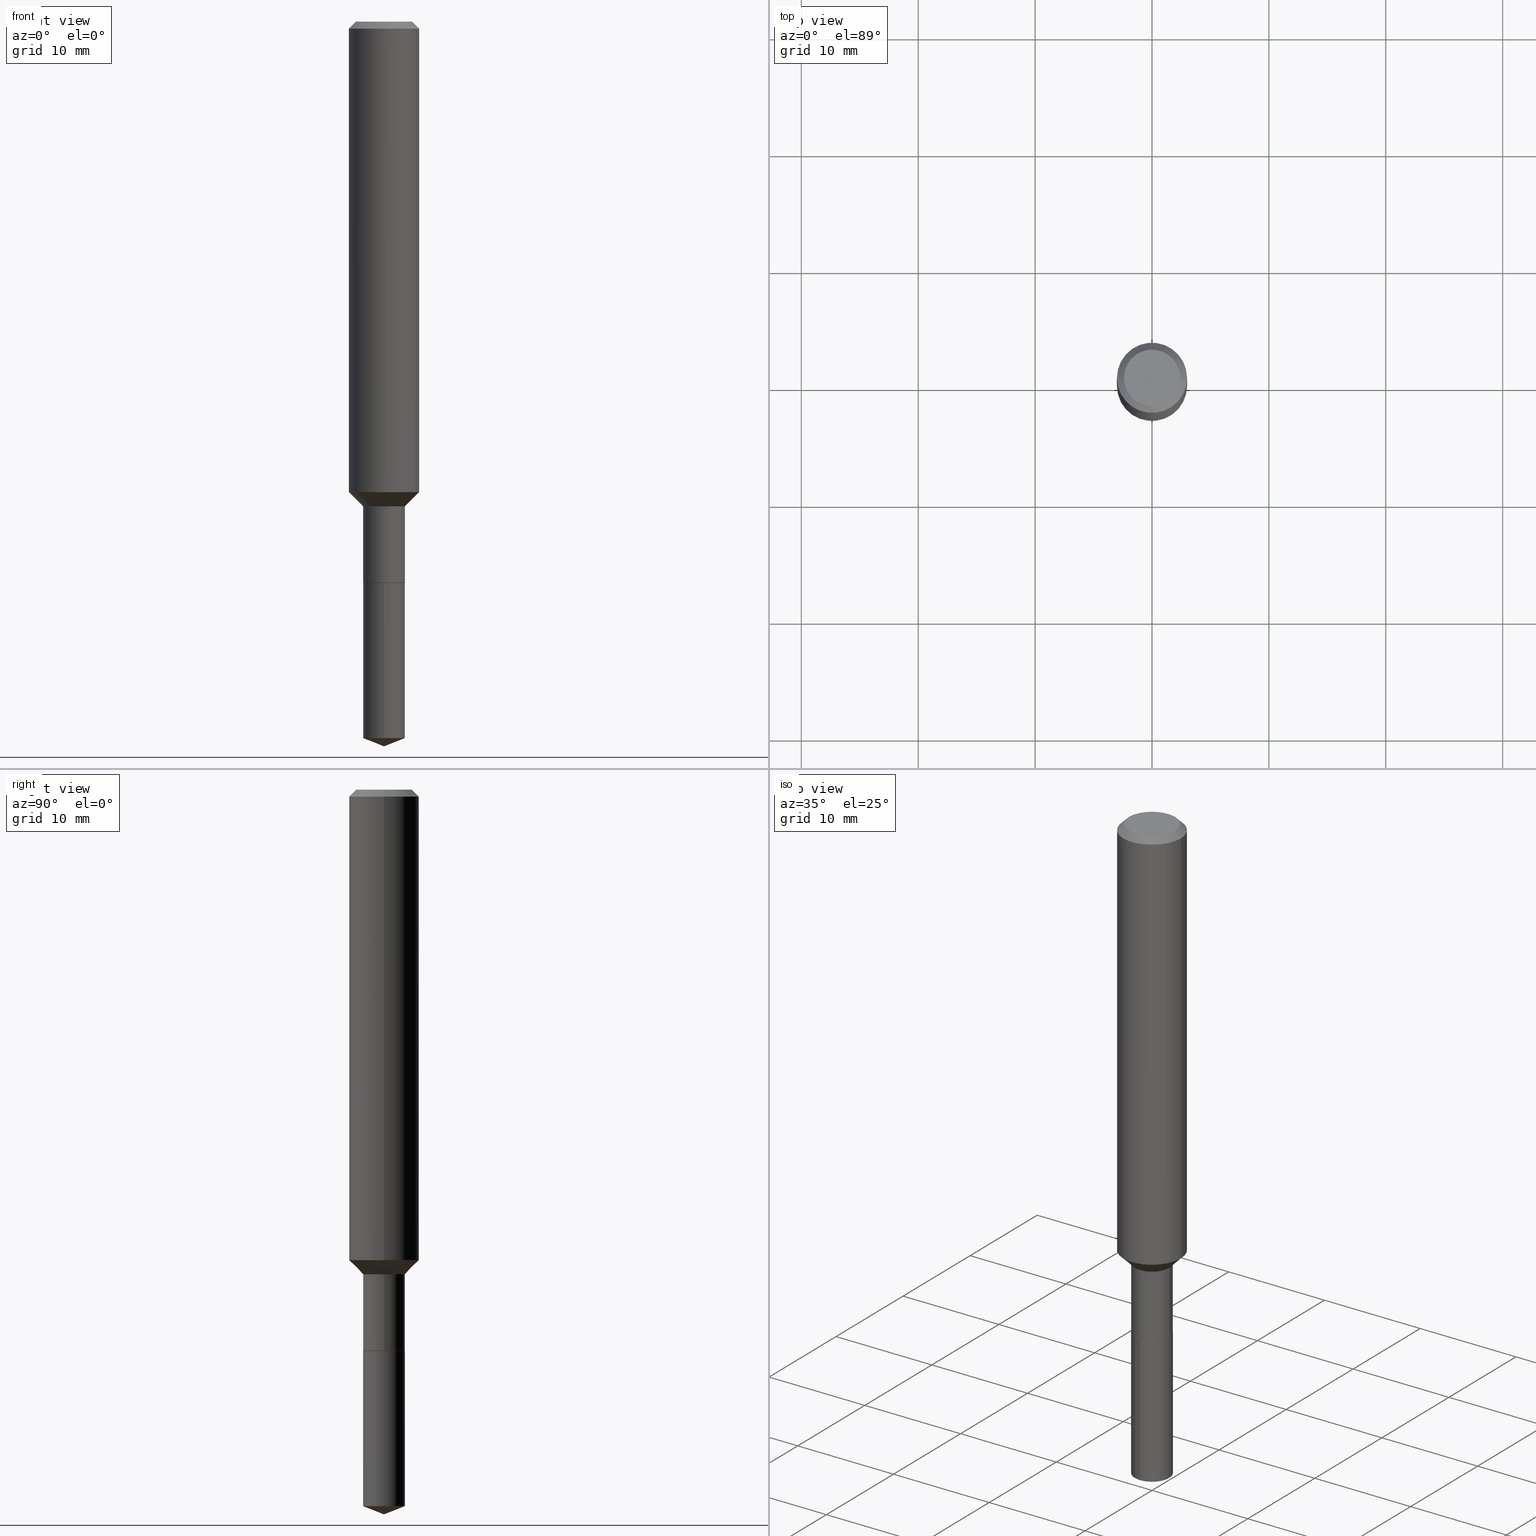
[diagram: canonical four-view strip — front | top / right | iso, engineering-drawing reading convention]
A machine part, canonical four-view strip (front | top / right | iso — engineering-drawing reading convention). The complete STEP part file that produces these views, byte-faithful:
ISO-10303-21;
HEADER;
FILE_DESCRIPTION (( 'STEP AP203' ),
    '1' );
FILE_NAME ('56402.STEP',
    '2024-04-24T17:11:49',
    ( '' ),
    ( '' ),
    'SwSTEP 2.0',
    'SolidWorks 2023',
    '' );
FILE_SCHEMA (( 'CONFIG_CONTROL_DESIGN' ));
ENDSEC;

DATA;
#1 = VERTEX_POINT ( 'NONE', #118 ) ;
#2 = APPROVAL ( #278, 'UNSPECIFIED' ) ;
#3 = AXIS2_PLACEMENT_3D ( 'NONE', #241, #327, #139 ) ;
#4 = AXIS2_PLACEMENT_3D ( 'NONE', #158, #52, #311 ) ;
#5 = CARTESIAN_POINT ( 'NONE',  ( 3.991983279216617405E-29, -5.699494137527552043E-15, -1.632400000000000295 ) ) ;
#6 = ORIENTED_EDGE ( 'NONE', *, *, #50, .F. ) ;
#7 = DIRECTION ( 'NONE',  ( -1.000000000000000000, 6.982962677686266711E-15, 0.000000000000000000 ) ) ;
#8 = EDGE_CURVE ( 'NONE', #299, #447, #367, .T. ) ;
#9 = DIRECTION ( 'NONE',  ( -6.982962677686266711E-15, -1.000000000000000000, 3.885985766236505386E-15 ) ) ;
#10 = CYLINDRICAL_SURFACE ( 'NONE', #225, 0.1181000000000001077 ) ;
#11 = AXIS2_PLACEMENT_3D ( 'NONE', #389, #416, #9 ) ;
#12 = FACE_OUTER_BOUND ( 'NONE', #375, .T. ) ;
#13 = LINE ( 'NONE', #231, #99 ) ;
#14 = FACE_OUTER_BOUND ( 'NONE', #148, .T. ) ;
#15 = ADVANCED_FACE ( 'NONE', ( #14 ), #10, .T. ) ;
#16 = DIRECTION ( 'NONE',  ( -2.426947592678621313E-29, 3.518004770746482411E-15, 1.000000000000000000 ) ) ;
#17 = CARTESIAN_POINT ( 'NONE',  ( -0.07029999999999998750, 4.995115432393503418E-16, -3.458011368449198169E-30 ) ) ;
#18 = VECTOR ( 'NONE', #388, 39.37007874015748143 ) ;
#19 = DIMENSIONAL_EXPONENTS ( 1.000000000000000000, 0.000000000000000000, 0.000000000000000000, 0.000000000000000000, 0.000000000000000000, 0.000000000000000000, 0.000000000000000000 ) ;
#20 = DIRECTION ( 'NONE',  ( 1.000000000000000000, -6.982962677686269077E-15, 0.000000000000000000 ) ) ;
#21 = PERSON_AND_ORGANIZATION ( #71, #258 ) ;
#22 = VECTOR ( 'NONE', #387, 39.37007874015748143 ) ;
#23 = LOCAL_TIME ( 13, 11, 49.00000000000000000, #173 ) ;
#24 = ADVANCED_FACE ( 'NONE', ( #238 ), #459, .T. ) ;
#25 = EDGE_LOOP ( 'NONE', ( #77, #44, #146, #253 ) ) ;
#26 = DIRECTION ( 'NONE',  ( 1.000000000000000000, -6.982962677686266711E-15, 0.000000000000000000 ) ) ;
#27 = CIRCLE ( 'NONE', #351, 0.07030000000000001525 ) ;
#28 = ORIENTED_EDGE ( 'NONE', *, *, #490, .T. ) ;
#29 = EDGE_CURVE ( 'NONE', #104, #154, #40, .T. ) ;
#30 = VERTEX_POINT ( 'NONE', #86 ) ;
#31 = DESIGN_CONTEXT ( 'detailed design', #252, 'design' ) ;
#32 = CC_DESIGN_PERSON_AND_ORGANIZATION_ASSIGNMENT ( #248, #438, ( #272 ) ) ;
#33 = ORIENTED_EDGE ( 'NONE', *, *, #344, .T. ) ;
#34 = CARTESIAN_POINT ( 'NONE',  ( 4.621202403048052644E-29, -6.597852286011891701E-15, -1.889699999999999713 ) ) ;
#35 = EDGE_LOOP ( 'NONE', ( #151, #95, #149, #373 ) ) ;
#36 = CIRCLE ( 'NONE', #3, 0.1180999999999999966 ) ;
#37 = DIRECTION ( 'NONE',  ( 1.000000000000000000, -6.982962677686271444E-15, 0.000000000000000000 ) ) ;
#38 = FACE_OUTER_BOUND ( 'NONE', #65, .T. ) ;
#39 = PERSON_AND_ORGANIZATION ( #71, #258 ) ;
#40 = LINE ( 'NONE', #314, #361 ) ;
#41 = EDGE_CURVE ( 'NONE', #354, #154, #437, .T. ) ;
#42 = DIRECTION ( 'NONE',  ( -2.445468806185136597E-29, 3.491481338843145583E-15, 1.000000000000000000 ) ) ;
#43 = DIRECTION ( 'NONE',  ( -1.000000000000000000, 6.982962677686266711E-15, 0.000000000000000000 ) ) ;
#44 = ORIENTED_EDGE ( 'NONE', *, *, #59, .T. ) ;
#45 = CARTESIAN_POINT ( 'NONE',  ( 4.621202403048053204E-29, -6.597852286011893278E-15, -1.889700000000000379 ) ) ;
#46 = DIRECTION ( 'NONE',  ( 1.000000000000000000, -6.982962677686269077E-15, 0.000000000000000000 ) ) ;
#47 = ORIENTED_EDGE ( 'NONE', *, *, #221, .T. ) ;
#48 = AXIS2_PLACEMENT_3D ( 'NONE', #284, #183, #355 ) ;
#49 = CIRCLE ( 'NONE', #399, 0.1181000000000001909 ) ;
#50 = EDGE_CURVE ( 'NONE', #414, #110, #463, .T. ) ;
#51 = EDGE_LOOP ( 'NONE', ( #222, #337 ) ) ;
#52 = DIRECTION ( 'NONE',  ( -2.426947592678621032E-29, 3.518004770746482806E-15, 1.000000000000000000 ) ) ;
#53 = DIRECTION ( 'NONE',  ( 0.000000000000000000, 0.000000000000000000, 1.000000000000000000 ) ) ;
#54 = DIRECTION ( 'NONE',  ( -2.426947592678621032E-29, 3.518004770746482806E-15, 1.000000000000000000 ) ) ;
#55 = COORDINATED_UNIVERSAL_TIME_OFFSET ( 5, 0, .BEHIND. ) ;
#56 = CARTESIAN_POINT ( 'NONE',  ( 0.07029999999999995974, -6.190396413768896991E-15, -1.632400000000000295 ) ) ;
#57 = AXIS2_PLACEMENT_3D ( 'NONE', #127, #390, #306 ) ;
#58 = SECURITY_CLASSIFICATION_LEVEL ( 'unclassified' ) ;
#59 = EDGE_CURVE ( 'NONE', #354, #270, #84, .T. ) ;
#60 = CARTESIAN_POINT ( 'NONE',  ( 0.07029999999999998750, -7.087008821583815933E-15, -1.889200000000000212 ) ) ;
#61 = DATE_AND_TIME ( #402, #219 ) ;
#62 = AXIS2_PLACEMENT_3D ( 'NONE', #202, #333, #26 ) ;
#63 = EDGE_CURVE ( 'NONE', #296, #30, #125, .T. ) ;
#64 = AXIS2_PLACEMENT_3D ( 'NONE', #116, #323, #470 ) ;
#65 = EDGE_LOOP ( 'NONE', ( #115, #335, #489, #410 ) ) ;
#66 = DIRECTION ( 'NONE',  ( 0.7071067811865460184, -7.319954787623251312E-15, -0.7071067811865490160 ) ) ;
#67 = VERTEX_POINT ( 'NONE', #468 ) ;
#68 = FACE_OUTER_BOUND ( 'NONE', #25, .T. ) ;
#69 = AXIS2_PLACEMENT_3D ( 'NONE', #117, #267, #420 ) ;
#70 = EDGE_LOOP ( 'NONE', ( #98, #208, #191 ) ) ;
#71 = PERSON ( 'UNSPECIFIED', 'UNSPECIFIED', 'UNSPECIFIED', ('UNSPECIFIED'), ('UNSPECIFIED'), ('UNSPECIFIED') ) ;
#72 = VERTEX_POINT ( 'NONE', #431 ) ;
#73 = DIRECTION ( 'NONE',  ( 1.000000000000000000, -6.982962677686271444E-15, 0.000000000000000000 ) ) ;
#74 = ORIENTED_EDGE ( 'NONE', *, *, #471, .F. ) ;
#75 = CARTESIAN_POINT ( 'NONE',  ( 0.1181000000000001632, -6.357289221765599043E-15, -1.584600000000000453 ) ) ;
#76 = DIRECTION ( 'NONE',  ( -2.445468806185136877E-29, 3.491481338843145188E-15, 1.000000000000000000 ) ) ;
#77 = ORIENTED_EDGE ( 'NONE', *, *, #138, .T. ) ;
#78 = EDGE_CURVE ( 'NONE', #167, #72, #36, .T. ) ;
#79 = AXIS2_PLACEMENT_3D ( 'NONE', #34, #455, #189 ) ;
#80 = FACE_OUTER_BOUND ( 'NONE', #279, .T. ) ;
#81 = LINE ( 'NONE', #286, #295 ) ;
#82 = CARTESIAN_POINT ( 'NONE',  ( -0.06980000000000000093, -6.101893456451343539E-15, -1.889700000000000379 ) ) ;
#83 = APPROVAL_ROLE ( '' ) ;
#84 = LINE ( 'NONE', #228, #22 ) ;
#85 = CYLINDRICAL_SURFACE ( 'NONE', #79, 0.07030000000000000138 ) ;
#86 = CARTESIAN_POINT ( 'NONE',  ( 0.07029999999999995974, -6.190396413768896991E-15, -1.632400000000000295 ) ) ;
#87 = EDGE_CURVE ( 'NONE', #242, #412, #334, .T. ) ;
#88 = DATE_TIME_ROLE ( 'creation_date' ) ;
#89 = ORIENTED_EDGE ( 'NONE', *, *, #427, .F. ) ;
#90 = CARTESIAN_POINT ( 'NONE',  ( 3.875089870280967892E-29, -5.532601329530849202E-15, -1.584600000000000453 ) ) ;
#91 = VECTOR ( 'NONE', #210, 39.37007874015748143 ) ;
#92 = LINE ( 'NONE', #394, #269 ) ;
#93 = VECTOR ( 'NONE', #159, 39.37007874015748143 ) ;
#94 = APPROVAL ( #440, 'UNSPECIFIED' ) ;
#95 = ORIENTED_EDGE ( 'NONE', *, *, #112, .T. ) ;
#96 = LINE ( 'NONE', #56, #411 ) ;
#97 = CALENDAR_DATE ( 2024, 24, 4 ) ;
#98 = ORIENTED_EDGE ( 'NONE', *, *, #344, .F. ) ;
#99 = VECTOR ( 'NONE', #408, 39.37007874015748854 ) ;
#100 = DATE_AND_TIME ( #97, #23 ) ;
#101 = DATE_TIME_ROLE ( 'classification_date' ) ;
#102 = AXIS2_PLACEMENT_3D ( 'NONE', #113, #264, #234 ) ;
#103 = LOCAL_TIME ( 13, 11, 49.00000000000000000, #140 ) ;
#104 = VERTEX_POINT ( 'NONE', #397 ) ;
#105 = CYLINDRICAL_SURFACE ( 'NONE', #461, 0.07029999999999998750 ) ;
#106 = DIRECTION ( 'NONE',  ( 1.000000000000000000, -6.982962677686271444E-15, 0.000000000000000000 ) ) ;
#107 = ORIENTED_EDGE ( 'NONE', *, *, #221, .F. ) ;
#108 = EDGE_CURVE ( 'NONE', #30, #242, #96, .T. ) ;
#109 = VERTEX_POINT ( 'NONE', #213 ) ;
#110 = VERTEX_POINT ( 'NONE', #177 ) ;
#111 = DIRECTION ( 'NONE',  ( 1.000000000000000000, -6.982962677686266711E-15, 0.000000000000000000 ) ) ;
#112 = EDGE_CURVE ( 'NONE', #1, #414, #452, .T. ) ;
#113 = CARTESIAN_POINT ( 'NONE',  ( 3.991983279216617405E-29, -5.699494137527552043E-15, -1.632400000000000295 ) ) ;
#114 = DIRECTION ( 'NONE',  ( -2.445468806185136597E-29, 3.491481338843145583E-15, 1.000000000000000000 ) ) ;
#115 = ORIENTED_EDGE ( 'NONE', *, *, #8, .F. ) ;
#116 = CARTESIAN_POINT ( 'NONE',  ( -5.066296111865690233E-30, -1.394119958846901533E-14, -1.889699999999999713 ) ) ;
#117 = CARTESIAN_POINT ( 'NONE',  ( 4.621202403048053204E-29, -6.597852286011892490E-15, -1.889700000000000157 ) ) ;
#118 = CARTESIAN_POINT ( 'NONE',  ( -0.06980000000000000093, -6.099244229277232338E-15, -1.889700000000000379 ) ) ;
#119 = VECTOR ( 'NONE', #316, 39.37007874015748854 ) ;
#120 = DIRECTION ( 'NONE',  ( 1.000000000000000000, -6.982962677686266711E-15, 4.876176775795935232E-29 ) ) ;
#121 = FACE_OUTER_BOUND ( 'NONE', #35, .T. ) ;
#122 = EDGE_CURVE ( 'NONE', #109, #296, #13, .T. ) ;
#123 = DIRECTION ( 'NONE',  ( -1.000000000000000000, 6.982962677686265922E-15, -4.876176775795935793E-29 ) ) ;
#124 = CARTESIAN_POINT ( 'NONE',  ( 0.1180999999999999966, -9.071566814582237199E-16, -0.02362000000000014088 ) ) ;
#125 = LINE ( 'NONE', #196, #257 ) ;
#126 = CC_DESIGN_PERSON_AND_ORGANIZATION_ASSIGNMENT ( #39, #195, ( #464 ) ) ;
#127 = CARTESIAN_POINT ( 'NONE',  ( 0.000000000000000000, 0.000000000000000000, 0.000000000000000000 ) ) ;
#128 = DIRECTION ( 'NONE',  ( -2.445468806185136597E-29, 3.491481338843145583E-15, 1.000000000000000000 ) ) ;
#129 = ORIENTED_EDGE ( 'NONE', *, *, #366, .T. ) ;
#130 = AXIS2_PLACEMENT_3D ( 'NONE', #372, #216, #182 ) ;
#131 = ORIENTED_EDGE ( 'NONE', *, *, #271, .F. ) ;
#132 = EDGE_CURVE ( 'NONE', #296, #414, #449, .T. ) ;
#133 = PLANE ( 'NONE',  #48 ) ;
#134 = ORIENTED_EDGE ( 'NONE', *, *, #483, .T. ) ;
#135 = AXIS2_PLACEMENT_3D ( 'NONE', #162, #475, #283 ) ;
#136 = CIRCLE ( 'NONE', #190, 0.06980000000000000093 ) ;
#137 = CIRCLE ( 'NONE', #301, 0.07029999999999998750 ) ;
#138 = EDGE_CURVE ( 'NONE', #154, #354, #27, .T. ) ;
#139 = DIRECTION ( 'NONE',  ( 1.000000000000000000, -6.982962677686266711E-15, 0.000000000000000000 ) ) ;
#140 = COORDINATED_UNIVERSAL_TIME_OFFSET ( 5, 0, .BEHIND. ) ;
#141 = PRODUCT_RELATED_PRODUCT_CATEGORY ( 'detail', '', ( #384 ) ) ;
#142 = FACE_OUTER_BOUND ( 'NONE', #259, .T. ) ;
#143 = AXIS2_PLACEMENT_3D ( 'NONE', #396, #54, #236 ) ;
#144 = AXIS2_PLACEMENT_3D ( 'NONE', #460, #165, #120 ) ;
#145 = CC_DESIGN_APPROVAL ( #2, ( #464 ) ) ;
#146 = ORIENTED_EDGE ( 'NONE', *, *, #251, .F. ) ;
#147 = DIRECTION ( 'NONE',  ( 2.445468806185136597E-29, -3.491481338843145583E-15, -1.000000000000000000 ) ) ;
#148 = EDGE_LOOP ( 'NONE', ( #255, #342, #302, #380 ) ) ;
#149 = ORIENTED_EDGE ( 'NONE', *, *, #132, .F. ) ;
#150 = CIRCLE ( 'NONE', #102, 0.07029999999999995974 ) ;
#151 = ORIENTED_EDGE ( 'NONE', *, *, #271, .T. ) ;
#152 = ADVANCED_FACE ( 'NONE', ( #352 ), #105, .T. ) ;
#153 = DIRECTION ( 'NONE',  ( -2.445468806185136597E-29, 3.491481338843145583E-15, 1.000000000000000000 ) ) ;
#154 = VERTEX_POINT ( 'NONE', #446 ) ;
#155 = CARTESIAN_POINT ( 'NONE',  ( 5.776197320209327532E-31, -8.246878922347559293E-17, -0.02362000000000014088 ) ) ;
#156 = DATE_AND_TIME ( #237, #192 ) ;
#157 = ORIENTED_EDGE ( 'NONE', *, *, #112, .F. ) ;
#158 = CARTESIAN_POINT ( 'NONE',  ( 4.621202403048053204E-29, -6.597852286011892490E-15, -1.889700000000000157 ) ) ;
#159 = DIRECTION ( 'NONE',  ( -2.445468806185136877E-29, 3.491481338843145188E-15, 1.000000000000000000 ) ) ;
#160 = DIRECTION ( 'NONE',  ( 2.445468806185136597E-29, -3.491481338843145583E-15, -1.000000000000000000 ) ) ;
#161 =( NAMED_UNIT ( * ) SI_UNIT ( $, .STERADIAN. ) SOLID_ANGLE_UNIT ( ) );
#162 = CARTESIAN_POINT ( 'NONE',  ( -8.959018190586044362E-28, 1.299671483168913418E-13, 36.92917874015748225 ) ) ;
#163 = AXIS2_PLACEMENT_3D ( 'NONE', #308, #379, #254 ) ;
#164 = CIRCLE ( 'NONE', #4, 0.07030000000000000138 ) ;
#165 = DIRECTION ( 'NONE',  ( -2.445468806185136597E-29, 3.491481338843145583E-15, 1.000000000000000000 ) ) ;
#166 = DIRECTION ( 'NONE',  ( -2.426947592678621032E-29, 3.518004770746482806E-15, 1.000000000000000000 ) ) ;
#167 = VERTEX_POINT ( 'NONE', #124 ) ;
#168 = EDGE_CURVE ( 'NONE', #30, #110, #312, .T. ) ;
#169 = CARTESIAN_POINT ( 'NONE',  ( -0.07030000000000000138, -5.648288798195662455E-15, -1.889200000000000212 ) ) ;
#170 = CIRCLE ( 'NONE', #205, 0.1180999999999999966 ) ;
#171 = EDGE_CURVE ( 'NONE', #299, #167, #462, .T. ) ;
#172 = CC_DESIGN_SECURITY_CLASSIFICATION ( #369, ( #272 ) ) ;
#173 = COORDINATED_UNIVERSAL_TIME_OFFSET ( 5, 0, .BEHIND. ) ;
#174 = APPROVAL_ROLE ( '' ) ;
#175 = ADVANCED_FACE ( 'NONE', ( #121 ), #339, .T. ) ;
#176 = AXIS2_PLACEMENT_3D ( 'NONE', #480, #289, #20 ) ;
#177 = CARTESIAN_POINT ( 'NONE',  ( -0.07029999999999995974, -5.648288798195662455E-15, -1.632400000000000295 ) ) ;
#178 = PERSON_AND_ORGANIZATION ( #71, #258 ) ;
#179 = CC_DESIGN_PERSON_AND_ORGANIZATION_ASSIGNMENT ( #400, #477, ( #369 ) ) ;
#180 = LINE ( 'NONE', #329, #478 ) ;
#181 = ORIENTED_EDGE ( 'NONE', *, *, #282, .T. ) ;
#182 = DIRECTION ( 'NONE',  ( 1.000000000000000000, -6.982962677686271444E-15, 0.000000000000000000 ) ) ;
#183 = DIRECTION ( 'NONE',  ( -2.438088387897960049E-29, 3.491481338843145188E-15, 1.000000000000000000 ) ) ;
#184 = ADVANCED_FACE ( 'NONE', ( #223 ), #374, .T. ) ;
#185 =( GEOMETRIC_REPRESENTATION_CONTEXT ( 3 ) GLOBAL_UNCERTAINTY_ASSIGNED_CONTEXT ( ( #261 ) ) GLOBAL_UNIT_ASSIGNED_CONTEXT ( ( #395, #356, #161 ) ) REPRESENTATION_CONTEXT ( 'NONE', 'WORKASPACE' ) );
#186 = ORIENTED_EDGE ( 'NONE', *, *, #108, .T. ) ;
#187 = ORIENTED_EDGE ( 'NONE', *, *, #63, .F. ) ;
#188 = ORIENTED_EDGE ( 'NONE', *, *, #87, .F. ) ;
#189 = DIRECTION ( 'NONE',  ( -6.982962677686266711E-15, -1.000000000000000000, 3.885985766236505386E-15 ) ) ;
#190 = AXIS2_PLACEMENT_3D ( 'NONE', #45, #128, #106 ) ;
#191 = ORIENTED_EDGE ( 'NONE', *, *, #41, .F. ) ;
#192 = LOCAL_TIME ( 13, 11, 49.00000000000000000, #227 ) ;
#193 = DIRECTION ( 'NONE',  ( -2.445468806185136597E-29, 3.491481338843145583E-15, 1.000000000000000000 ) ) ;
#194 = DIRECTION ( 'NONE',  ( -6.982962677686266711E-15, -1.000000000000000000, 3.885985766236504597E-15 ) ) ;
#195 = PERSON_AND_ORGANIZATION_ROLE ( 'creator' ) ;
#196 = CARTESIAN_POINT ( 'NONE',  ( 0.07029999999999998750, -4.909022762413444543E-16, 3.427952273384541736E-30 ) ) ;
#197 = DIRECTION ( 'NONE',  ( 1.000000000000000000, -6.982962677686266711E-15, 0.000000000000000000 ) ) ;
#198 = DIRECTION ( 'NONE',  ( -2.445468806185136597E-29, 3.491481338843145583E-15, 1.000000000000000000 ) ) ;
#199 = LINE ( 'NONE', #235, #444 ) ;
#200 = DIRECTION ( 'NONE',  ( 1.000000000000000000, -6.982962677686266711E-15, 4.876176775795935793E-29 ) ) ;
#201 = ADVANCED_FACE ( 'NONE', ( #424 ), #368, .T. ) ;
#202 = CARTESIAN_POINT ( 'NONE',  ( 4.619979668644960403E-29, -6.596106545342470986E-15, -1.889200000000000212 ) ) ;
#203 = MECHANICAL_CONTEXT ( 'NONE', #476, 'mechanical' ) ;
#204 = EDGE_LOOP ( 'NONE', ( #457, #488, #129, #89 ) ) ;
#205 = AXIS2_PLACEMENT_3D ( 'NONE', #428, #246, #111 ) ;
#206 = CIRCLE ( 'NONE', #405, 0.09447999999999998066 ) ;
#207 =( LENGTH_UNIT ( ) NAMED_UNIT ( * ) SI_UNIT ( $, .METRE. ) );
#208 = ORIENTED_EDGE ( 'NONE', *, *, #29, .T. ) ;
#209 = PERSON_AND_ORGANIZATION_ROLE ( 'design_owner' ) ;
#210 = DIRECTION ( 'NONE',  ( -2.445468806185136877E-29, 3.491481338843145188E-15, 1.000000000000000000 ) ) ;
#211 = ADVANCED_FACE ( 'NONE', ( #68 ), #85, .T. ) ;
#212 = APPROVAL_DATE_TIME ( #100, #94 ) ;
#213 = CARTESIAN_POINT ( 'NONE',  ( 0.06980000000000000093, -7.085263080914395219E-15, -1.889700000000000379 ) ) ;
#214 = APPROVAL ( #421, 'UNSPECIFIED' ) ;
#215 = AXIS2_PLACEMENT_3D ( 'NONE', #300, #260, #73 ) ;
#216 = DIRECTION ( 'NONE',  ( -2.445468806185136597E-29, 3.491481338843145583E-15, 1.000000000000000000 ) ) ;
#217 = ADVANCED_FACE ( 'NONE', ( #341 ), #244, .T. ) ;
#218 = ORIENTED_EDGE ( 'NONE', *, *, #413, .F. ) ;
#219 = LOCAL_TIME ( 13, 11, 49.00000000000000000, #55 ) ;
#220 = EDGE_LOOP ( 'NONE', ( #448, #134, #28, #298 ) ) ;
#221 = EDGE_CURVE ( 'NONE', #110, #30, #150, .T. ) ;
#222 = ORIENTED_EDGE ( 'NONE', *, *, #471, .T. ) ;
#223 = FACE_OUTER_BOUND ( 'NONE', #338, .T. ) ;
#224 = ORIENTED_EDGE ( 'NONE', *, *, #50, .T. ) ;
#225 = AXIS2_PLACEMENT_3D ( 'NONE', #435, #426, #200 ) ;
#226 = DIRECTION ( 'NONE',  ( -2.445468806185136597E-29, 3.491481338843145583E-15, 1.000000000000000000 ) ) ;
#227 = COORDINATED_UNIVERSAL_TIME_OFFSET ( 5, 0, .BEHIND. ) ;
#228 = CARTESIAN_POINT ( 'NONE',  ( 4.995115432393966874E-16, 0.07029999999999340943, -1.889700000000000157 ) ) ;
#229 = LOCAL_TIME ( 13, 11, 49.00000000000000000, #309 ) ;
#230 = CARTESIAN_POINT ( 'NONE',  ( -0.1181000000000001077, 8.391509709326790846E-16, -5.809262341591049389E-30 ) ) ;
#231 = CARTESIAN_POINT ( 'NONE',  ( 0.06980000000000000093, -7.085263080914395219E-15, -1.889700000000000379 ) ) ;
#232 = ORIENTED_EDGE ( 'NONE', *, *, #251, .T. ) ;
#233 = LINE ( 'NONE', #358, #18 ) ;
#234 = DIRECTION ( 'NONE',  ( 1.000000000000000000, -6.982962677686269077E-15, 0.000000000000000000 ) ) ;
#235 = CARTESIAN_POINT ( 'NONE',  ( 0.1181000000000001077, -8.246878922347488542E-16, 5.758764772215005345E-30 ) ) ;
#236 = DIRECTION ( 'NONE',  ( -6.982962677686266711E-15, -1.000000000000000000, 3.885985766236504597E-15 ) ) ;
#237 = CALENDAR_DATE ( 2024, 24, 4 ) ;
#238 = FACE_OUTER_BOUND ( 'NONE', #70, .T. ) ;
#239 = ADVANCED_FACE ( 'NONE', ( #385 ), #349, .T. ) ;
#240 = ORIENTED_EDGE ( 'NONE', *, *, #401, .T. ) ;
#241 = CARTESIAN_POINT ( 'NONE',  ( 5.776197320209327532E-31, -8.246878922347559293E-17, -0.02362000000000014088 ) ) ;
#242 = VERTEX_POINT ( 'NONE', #75 ) ;
#243 = CLOSED_SHELL ( 'NONE', ( #175, #247, #15, #319, #336, #152, #217, #364, #201, #450, #328, #398 ) ) ;
#244 = CONICAL_SURFACE ( 'NONE', #439, 0.07029999999999995974, 0.7853981633974509435 ) ;
#245 = APPROVAL_PERSON_ORGANIZATION ( #417, #2, #322 ) ;
#246 = DIRECTION ( 'NONE',  ( -2.445468806185136597E-29, 3.491481338843145583E-15, 1.000000000000000000 ) ) ;
#247 = ADVANCED_FACE ( 'NONE', ( #38 ), #472, .T. ) ;
#248 = PERSON_AND_ORGANIZATION ( #71, #258 ) ;
#249 = APPROVAL_PERSON_ORGANIZATION ( #268, #214, #83 ) ;
#250 = DIRECTION ( 'NONE',  ( 1.000000000000000000, -6.982962677686269077E-15, 0.000000000000000000 ) ) ;
#251 = EDGE_CURVE ( 'NONE', #67, #270, #287, .T. ) ;
#252 = APPLICATION_CONTEXT ( 'configuration controlled 3d designs of mechanical parts and assemblies' ) ;
#253 = ORIENTED_EDGE ( 'NONE', *, *, #366, .F. ) ;
#254 = DIRECTION ( 'NONE',  ( -6.982962677686268288E-15, -1.000000000000000000, 3.498627837350004617E-15 ) ) ;
#255 = ORIENTED_EDGE ( 'NONE', *, *, #87, .T. ) ;
#256 = CARTESIAN_POINT ( 'NONE',  ( -0.1181000000000001632, -4.693450358598171005E-15, -1.584600000000000453 ) ) ;
#257 = VECTOR ( 'NONE', #318, 39.37007874015748143 ) ;
#258 = ORGANIZATION ( 'UNSPECIFIED', 'UNSPECIFIED', '' ) ;
#259 = EDGE_LOOP ( 'NONE', ( #332, #181, #188, #359 ) ) ;
#260 = DIRECTION ( 'NONE',  ( -2.445468806185136597E-29, 3.491481338843145583E-15, 1.000000000000000000 ) ) ;
#261 = UNCERTAINTY_MEASURE_WITH_UNIT (LENGTH_MEASURE( 1.000000000000000082E-05 ), #395, 'distance_accuracy_value', 'NONE');
#262 = ORIENTED_EDGE ( 'NONE', *, *, #122, .T. ) ;
#263 = DIRECTION ( 'NONE',  ( -0.7071067811865493491, 7.493145998870360471E-15, 0.7071067811865456854 ) ) ;
#264 = DIRECTION ( 'NONE',  ( -2.445468806185136597E-29, 3.491481338843145583E-15, 1.000000000000000000 ) ) ;
#265 = ORIENTED_EDGE ( 'NONE', *, *, #171, .F. ) ;
#266 = CARTESIAN_POINT ( 'NONE',  ( 4.619979668644960403E-29, -6.596106545342470986E-15, -1.889200000000000212 ) ) ;
#267 = DIRECTION ( 'NONE',  ( -2.426947592678621032E-29, 3.518004770746482806E-15, 1.000000000000000000 ) ) ;
#268 = PERSON_AND_ORGANIZATION ( #71, #258 ) ;
#269 = VECTOR ( 'NONE', #16, 39.37007874015748143 ) ;
#270 = VERTEX_POINT ( 'NONE', #391 ) ;
#271 = EDGE_CURVE ( 'NONE', #109, #1, #136, .T. ) ;
#272 = PRODUCT_DEFINITION_FORMATION_WITH_SPECIFIED_SOURCE ( 'ANY', '', #384, .NOT_KNOWN. ) ;
#273 = DIRECTION ( 'NONE',  ( 1.000000000000000000, -6.982962677686269077E-15, 0.000000000000000000 ) ) ;
#274 = APPLICATION_PROTOCOL_DEFINITION ( 'international standard', 'config_control_design', 1994, #476 ) ;
#275 = ORIENTED_EDGE ( 'NONE', *, *, #29, .F. ) ;
#276 = CYLINDRICAL_SURFACE ( 'NONE', #57, 0.1181000000000001077 ) ;
#277 = CARTESIAN_POINT ( 'NONE',  ( 0.1180999999999999966, -8.926936027602933910E-16, -0.02362000000000014088 ) ) ;
#278 = APPROVAL_STATUS ( 'not_yet_approved' ) ;
#279 = EDGE_LOOP ( 'NONE', ( #232, #347 ) ) ;
#280 = MANIFOLD_SOLID_BREP ( 'Body-Move/Copy2[2]', #243 ) ;
#281 = CARTESIAN_POINT ( 'NONE',  ( 6.603013411620882309E-46, -9.427353171913646324E-32, -2.700101262760083747E-17 ) ) ;
#282 = EDGE_CURVE ( 'NONE', #110, #412, #81, .T. ) ;
#283 = DIRECTION ( 'NONE',  ( -6.982962677686268288E-15, -1.000000000000000000, 3.498627837350004617E-15 ) ) ;
#284 = CARTESIAN_POINT ( 'NONE',  ( -5.707926267458934277E-29, -2.138975243967194241E-14, -1.889700000000000157 ) ) ;
#285 = ORIENTED_EDGE ( 'NONE', *, *, #282, .F. ) ;
#286 = CARTESIAN_POINT ( 'NONE',  ( -0.07029999999999995974, -5.199982594288202194E-15, -1.632400000000000295 ) ) ;
#287 = CIRCLE ( 'NONE', #69, 0.07030000000000000138 ) ;
#288 = AXIS2_PLACEMENT_3D ( 'NONE', #467, #53, #353 ) ;
#289 = DIRECTION ( 'NONE',  ( -2.445468806185136597E-29, 3.491481338843145583E-15, 1.000000000000000000 ) ) ;
#290 = SHAPE_DEFINITION_REPRESENTATION ( #378, #376 ) ;
#291 = EDGE_CURVE ( 'NONE', #72, #167, #170, .T. ) ;
#292 = CARTESIAN_POINT ( 'NONE',  ( 3.991983279216617405E-29, -5.699494137527552043E-15, -1.632400000000000295 ) ) ;
#293 = ORIENTED_EDGE ( 'NONE', *, *, #63, .T. ) ;
#294 = AXIS2_PLACEMENT_3D ( 'NONE', #469, #357, #422 ) ;
#295 = VECTOR ( 'NONE', #263, 39.37007874015748143 ) ;
#296 = VERTEX_POINT ( 'NONE', #60 ) ;
#297 = CARTESIAN_POINT ( 'NONE',  ( 5.891729110471632150E-29, -8.439556256695389981E-15, -2.413208093564270129 ) ) ;
#298 = ORIENTED_EDGE ( 'NONE', *, *, #291, .F. ) ;
#299 = VERTEX_POINT ( 'NONE', #370 ) ;
#300 = CARTESIAN_POINT ( 'NONE',  ( 4.621202403048053204E-29, -6.597852286011893278E-15, -1.889700000000000379 ) ) ;
#301 = AXIS2_PLACEMENT_3D ( 'NONE', #266, #193, #197 ) ;
#302 = ORIENTED_EDGE ( 'NONE', *, *, #78, .F. ) ;
#303 = DIRECTION ( 'NONE',  ( 1.000000000000000000, -6.982962677686269077E-15, 0.000000000000000000 ) ) ;
#304 = APPLICATION_PROTOCOL_DEFINITION ( 'international standard', 'config_control_design', 1994, #252 ) ;
#305 = EDGE_LOOP ( 'NONE', ( #265, #74, #445, #485 ) ) ;
#306 = DIRECTION ( 'NONE',  ( 1.000000000000000000, -6.982962677686266711E-15, 4.876176775795935793E-29 ) ) ;
#307 = EDGE_CURVE ( 'NONE', #447, #72, #180, .T. ) ;
#308 = CARTESIAN_POINT ( 'NONE',  ( -8.959018190586044362E-28, 1.299671483168913418E-13, 36.92917874015748225 ) ) ;
#309 = COORDINATED_UNIVERSAL_TIME_OFFSET ( 5, 0, .BEHIND. ) ;
#310 = ORIENTED_EDGE ( 'NONE', *, *, #132, .T. ) ;
#311 = DIRECTION ( 'NONE',  ( -6.982962677686265133E-15, -1.000000000000000000, 3.885985766236505386E-15 ) ) ;
#312 = CIRCLE ( 'NONE', #325, 0.07029999999999995974 ) ;
#313 = CARTESIAN_POINT ( 'NONE',  ( 0.000000000000000000, 0.000000000000000000, 0.000000000000000000 ) ) ;
#314 = CARTESIAN_POINT ( 'NONE',  ( 5.923936378969246060E-29, -8.587097844915090797E-15, -2.440900000000000070 ) ) ;
#315 = FACE_OUTER_BOUND ( 'NONE', #51, .T. ) ;
#316 = DIRECTION ( 'NONE',  ( -0.7071067811864205632, 7.493145998869895043E-15, 0.7071067811866742492 ) ) ;
#317 = PERSON_AND_ORGANIZATION ( #71, #258 ) ;
#318 = DIRECTION ( 'NONE',  ( -2.445468806185136877E-29, 3.491481338843145188E-15, 1.000000000000000000 ) ) ;
#319 = ADVANCED_FACE ( 'NONE', ( #142 ), #392, .T. ) ;
#320 = DIRECTION ( 'NONE',  ( 2.438088387897960049E-29, -3.491481338843145188E-15, -1.000000000000000000 ) ) ;
#321 = FACE_OUTER_BOUND ( 'NONE', #220, .T. ) ;
#322 = APPROVAL_ROLE ( '' ) ;
#323 = DIRECTION ( 'NONE',  ( 2.426947592678620752E-29, -3.518004770746482411E-15, -1.000000000000000000 ) ) ;
#324 = CC_DESIGN_PERSON_AND_ORGANIZATION_ASSIGNMENT ( #317, #209, ( #384 ) ) ;
#325 = AXIS2_PLACEMENT_3D ( 'NONE', #346, #198, #273 ) ;
#326 = CC_DESIGN_APPROVAL ( #214, ( #272 ) ) ;
#327 = DIRECTION ( 'NONE',  ( -2.445468806185136597E-29, 3.491481338843145583E-15, 1.000000000000000000 ) ) ;
#328 = ADVANCED_FACE ( 'NONE', ( #406 ), #133, .F. ) ;
#329 = CARTESIAN_POINT ( 'NONE',  ( -0.1180999999999999966, 7.422191030112725094E-16, -0.02362000000000014088 ) ) ;
#330 = EDGE_LOOP ( 'NONE', ( #6, #240, #293, #107 ) ) ;
#331 = DIRECTION ( 'NONE',  ( -2.445468806185136597E-29, 3.491481338843145583E-15, 1.000000000000000000 ) ) ;
#332 = ORIENTED_EDGE ( 'NONE', *, *, #168, .T. ) ;
#333 = DIRECTION ( 'NONE',  ( -2.445468806185136597E-29, 3.491481338843145583E-15, 1.000000000000000000 ) ) ;
#334 = CIRCLE ( 'NONE', #176, 0.1181000000000001909 ) ;
#335 = ORIENTED_EDGE ( 'NONE', *, *, #171, .T. ) ;
#336 = ADVANCED_FACE ( 'NONE', ( #12 ), #429, .T. ) ;
#337 = ORIENTED_EDGE ( 'NONE', *, *, #8, .T. ) ;
#338 = EDGE_LOOP ( 'NONE', ( #275, #33, #453 ) ) ;
#339 = CONICAL_SURFACE ( 'NONE', #130, 0.06980000000000000093, 0.7853981633972689780 ) ;
#340 = CONICAL_SURFACE ( 'NONE', #487, 0.06980000000000000093, 0.7853981633972689780 ) ;
#341 = FACE_OUTER_BOUND ( 'NONE', #418, .T. ) ;
#342 = ORIENTED_EDGE ( 'NONE', *, *, #409, .T. ) ;
#343 = DIRECTION ( 'NONE',  ( 1.000000000000000000, -6.982962677686267499E-15, 4.875432709231658792E-29 ) ) ;
#344 = EDGE_CURVE ( 'NONE', #104, #354, #233, .T. ) ;
#345 = CARTESIAN_POINT ( 'NONE',  ( 4.995115432394094078E-16, 0.07029999999999157756, -2.413208093564270129 ) ) ;
#346 = CARTESIAN_POINT ( 'NONE',  ( 3.991983279216617405E-29, -5.699494137527552043E-15, -1.632400000000000295 ) ) ;
#347 = ORIENTED_EDGE ( 'NONE', *, *, #427, .T. ) ;
#348 = LINE ( 'NONE', #230, #93 ) ;
#349 = CYLINDRICAL_SURFACE ( 'NONE', #11, 0.07030000000000000138 ) ;
#350 = ORIENTED_EDGE ( 'NONE', *, *, #168, .F. ) ;
#351 = AXIS2_PLACEMENT_3D ( 'NONE', #297, #166, #194 ) ;
#352 = FACE_OUTER_BOUND ( 'NONE', #330, .T. ) ;
#353 = DIRECTION ( 'NONE',  ( 1.000000000000000000, 0.000000000000000000, 0.000000000000000000 ) ) ;
#354 = VERTEX_POINT ( 'NONE', #345 ) ;
#355 = DIRECTION ( 'NONE',  ( 1.000000000000000000, -6.982962677686265922E-15, 4.876176775795935793E-29 ) ) ;
#356 =( NAMED_UNIT ( * ) PLANE_ANGLE_UNIT ( ) SI_UNIT ( $, .RADIAN. ) );
#357 = DIRECTION ( 'NONE',  ( -2.445468806185136597E-29, 3.491481338843145583E-15, 1.000000000000000000 ) ) ;
#358 = CARTESIAN_POINT ( 'NONE',  ( 5.994549262550338540E-29, -8.486855186379617633E-15, -2.440900000000000070 ) ) ;
#359 = ORIENTED_EDGE ( 'NONE', *, *, #108, .F. ) ;
#360 = DIRECTION ( 'NONE',  ( 0.7071067811865493491, -2.468850131082276388E-15, 0.7071067811865456854 ) ) ;
#361 = VECTOR ( 'NONE', #436, 39.37007874015747433 ) ;
#362 = AXIS2_PLACEMENT_3D ( 'NONE', #292, #331, #250 ) ;
#363 = CIRCLE ( 'NONE', #215, 0.06980000000000000093 ) ;
#364 = ADVANCED_FACE ( 'NONE', ( #321 ), #276, .T. ) ;
#365 = PERSON_AND_ORGANIZATION_ROLE ( 'design_supplier' ) ;
#366 = EDGE_CURVE ( 'NONE', #154, #67, #92, .T. ) ;
#367 = CIRCLE ( 'NONE', #294, 0.09447999999999998066 ) ;
#368 = CONICAL_SURFACE ( 'NONE', #404, 0.1180999999999999966, 0.7853981633974461696 ) ;
#369 = SECURITY_CLASSIFICATION ( '', '', #58 ) ;
#370 = CARTESIAN_POINT ( 'NONE',  ( 0.09447999999999998066, -7.704367267948738690E-16, -2.700101262759583929E-17 ) ) ;
#371 = ORIENTED_EDGE ( 'NONE', *, *, #483, .F. ) ;
#372 = CARTESIAN_POINT ( 'NONE',  ( 4.621202403048053204E-29, -6.597852286011893278E-15, -1.889700000000000379 ) ) ;
#373 = ORIENTED_EDGE ( 'NONE', *, *, #122, .F. ) ;
#374 = CONICAL_SURFACE ( 'NONE', #163, 99.94676754583996114, 1.195550537616119513 ) ;
#375 = EDGE_LOOP ( 'NONE', ( #310, #224, #350, #187 ) ) ;
#376 = ADVANCED_BREP_SHAPE_REPRESENTATION ( '56402', ( #443, #280, #288 ), #185 ) ;
#377 = EDGE_LOOP ( 'NONE', ( #157, #407, #262, #393 ) ) ;
#378 = PRODUCT_DEFINITION_SHAPE ( 'NONE', 'NONE',  #464 ) ;
#379 = DIRECTION ( 'NONE',  ( -2.426947592678621032E-29, 3.518004770746482806E-15, 1.000000000000000000 ) ) ;
#380 = ORIENTED_EDGE ( 'NONE', *, *, #490, .F. ) ;
#381 = ADVANCED_FACE ( 'NONE', ( #80 ), #454, .F. ) ;
#382 = AXIS2_PLACEMENT_3D ( 'NONE', #155, #160, #43 ) ;
#383 = APPROVAL_PERSON_ORGANIZATION ( #178, #94, #174 ) ;
#384 = PRODUCT ( '56402', '56402', '', ( #203 ) ) ;
#385 = FACE_OUTER_BOUND ( 'NONE', #204, .T. ) ;
#386 = APPROVAL_DATE_TIME ( #156, #2 ) ;
#387 = DIRECTION ( 'NONE',  ( -2.426947592678621313E-29, 3.518004770746482411E-15, 1.000000000000000000 ) ) ;
#388 = DIRECTION ( 'NONE',  ( 6.611014441532066589E-15, 0.9304175679820272382, 0.3665012267242905297 ) ) ;
#389 = CARTESIAN_POINT ( 'NONE',  ( 4.621202403048052644E-29, -6.597852286011891701E-15, -1.889699999999999713 ) ) ;
#390 = DIRECTION ( 'NONE',  ( -2.445468806185136597E-29, 3.491481338843145583E-15, 1.000000000000000000 ) ) ;
#391 = CARTESIAN_POINT ( 'NONE',  ( 4.995115432394095064E-16, 0.07029999999999340943, -1.889700000000000379 ) ) ;
#392 = CONICAL_SURFACE ( 'NONE', #362, 0.07029999999999995974, 0.7853981633974509435 ) ;
#393 = ORIENTED_EDGE ( 'NONE', *, *, #401, .F. ) ;
#394 = CARTESIAN_POINT ( 'NONE',  ( -4.909022762412983059E-16, -0.07030000000000660720, -1.889699999999999491 ) ) ;
#395 =( CONVERSION_BASED_UNIT ( 'INCH', #425 ) LENGTH_UNIT ( ) NAMED_UNIT ( #19 ) );
#396 = CARTESIAN_POINT ( 'NONE',  ( 5.891729110471632150E-29, -8.439556256695389981E-15, -2.413208093564270129 ) ) ;
#397 = CARTESIAN_POINT ( 'NONE',  ( 5.923936378969246060E-29, -8.587097844915090797E-15, -2.440900000000000070 ) ) ;
#398 = ADVANCED_FACE ( 'NONE', ( #419 ), #340, .T. ) ;
#399 = AXIS2_PLACEMENT_3D ( 'NONE', #90, #114, #46 ) ;
#400 = PERSON_AND_ORGANIZATION ( #71, #258 ) ;
#401 = EDGE_CURVE ( 'NONE', #414, #296, #137, .T. ) ;
#402 = CALENDAR_DATE ( 2024, 24, 4 ) ;
#403 = CC_DESIGN_PERSON_AND_ORGANIZATION_ASSIGNMENT ( #21, #365, ( #272 ) ) ;
#404 = AXIS2_PLACEMENT_3D ( 'NONE', #486, #147, #7 ) ;
#405 = AXIS2_PLACEMENT_3D ( 'NONE', #281, #432, #343 ) ;
#406 = FACE_OUTER_BOUND ( 'NONE', #451, .T. ) ;
#407 = ORIENTED_EDGE ( 'NONE', *, *, #413, .T. ) ;
#408 = DIRECTION ( 'NONE',  ( 0.7071067811864205632, -2.468850131080928224E-15, 0.7071067811866742492 ) ) ;
#409 = EDGE_CURVE ( 'NONE', #412, #72, #348, .T. ) ;
#410 = ORIENTED_EDGE ( 'NONE', *, *, #307, .F. ) ;
#411 = VECTOR ( 'NONE', #360, 39.37007874015748143 ) ;
#412 = VERTEX_POINT ( 'NONE', #256 ) ;
#413 = EDGE_CURVE ( 'NONE', #1, #109, #363, .T. ) ;
#414 = VERTEX_POINT ( 'NONE', #169 ) ;
#415 = CARTESIAN_POINT ( 'NONE',  ( 4.621202403048053204E-29, -6.597852286011893278E-15, -1.889700000000000379 ) ) ;
#416 = DIRECTION ( 'NONE',  ( -2.426947592678621032E-29, 3.518004770746482806E-15, 1.000000000000000000 ) ) ;
#417 = PERSON_AND_ORGANIZATION ( #71, #258 ) ;
#418 = EDGE_LOOP ( 'NONE', ( #285, #47, #186, #371 ) ) ;
#419 = FACE_OUTER_BOUND ( 'NONE', #377, .T. ) ;
#420 = DIRECTION ( 'NONE',  ( -6.982962677686265133E-15, -1.000000000000000000, 3.885985766236505386E-15 ) ) ;
#421 = APPROVAL_STATUS ( 'not_yet_approved' ) ;
#422 = DIRECTION ( 'NONE',  ( 1.000000000000000000, -6.982962677686267499E-15, 4.875432709231658792E-29 ) ) ;
#423 = PLANE ( 'NONE',  #474 ) ;
#424 = FACE_OUTER_BOUND ( 'NONE', #305, .T. ) ;
#425 = LENGTH_MEASURE_WITH_UNIT ( LENGTH_MEASURE( 0.02539999999999999897 ), #207 );
#426 = DIRECTION ( 'NONE',  ( -2.445468806185136597E-29, 3.491481338843145583E-15, 1.000000000000000000 ) ) ;
#427 = EDGE_CURVE ( 'NONE', #270, #67, #164, .T. ) ;
#428 = CARTESIAN_POINT ( 'NONE',  ( 5.776197320209327532E-31, -8.246878922347559293E-17, -0.02362000000000014088 ) ) ;
#429 = CYLINDRICAL_SURFACE ( 'NONE', #144, 0.07029999999999998750 ) ;
#430 = DATE_AND_TIME ( #456, #229 ) ;
#431 = CARTESIAN_POINT ( 'NONE',  ( -0.1180999999999999966, -1.968384088444482555E-15, -0.02362000000000014088 ) ) ;
#432 = DIRECTION ( 'NONE',  ( -2.445468806185136597E-29, 3.491481338843145583E-15, 1.000000000000000000 ) ) ;
#433 = VECTOR ( 'NONE', #66, 39.37007874015748143 ) ;
#434 = CC_DESIGN_APPROVAL ( #94, ( #369 ) ) ;
#435 = CARTESIAN_POINT ( 'NONE',  ( 0.000000000000000000, 0.000000000000000000, 0.000000000000000000 ) ) ;
#436 = DIRECTION ( 'NONE',  ( -6.497071151882120625E-15, -0.9304175679820246847, 0.3665012267242971356 ) ) ;
#437 = CIRCLE ( 'NONE', #143, 0.07030000000000001525 ) ;
#438 = PERSON_AND_ORGANIZATION_ROLE ( 'creator' ) ;
#439 = AXIS2_PLACEMENT_3D ( 'NONE', #5, #153, #303 ) ;
#440 = APPROVAL_STATUS ( 'not_yet_approved' ) ;
#441 = CC_DESIGN_DATE_AND_TIME_ASSIGNMENT ( #61, #101, ( #369 ) ) ;
#442 = DATE_AND_TIME ( #473, #103 ) ;
#443 = MANIFOLD_SOLID_BREP ( 'Body-Move/Copy2[1]', #484 ) ;
#444 = VECTOR ( 'NONE', #76, 39.37007874015748143 ) ;
#445 = ORIENTED_EDGE ( 'NONE', *, *, #307, .T. ) ;
#446 = CARTESIAN_POINT ( 'NONE',  ( -4.909022762412856842E-16, -0.07030000000000845295, -2.413208093564269685 ) ) ;
#447 = VERTEX_POINT ( 'NONE', #458 ) ;
#448 = ORIENTED_EDGE ( 'NONE', *, *, #409, .F. ) ;
#449 = CIRCLE ( 'NONE', #62, 0.07029999999999998750 ) ;
#450 = ADVANCED_FACE ( 'NONE', ( #315 ), #423, .F. ) ;
#451 = EDGE_LOOP ( 'NONE', ( #131, #218 ) ) ;
#452 = LINE ( 'NONE', #82, #119 ) ;
#453 = ORIENTED_EDGE ( 'NONE', *, *, #138, .F. ) ;
#454 = PLANE ( 'NONE',  #64 ) ;
#455 = DIRECTION ( 'NONE',  ( -2.426947592678621032E-29, 3.518004770746482806E-15, 1.000000000000000000 ) ) ;
#456 = CALENDAR_DATE ( 2024, 24, 4 ) ;
#457 = ORIENTED_EDGE ( 'NONE', *, *, #59, .F. ) ;
#458 = CARTESIAN_POINT ( 'NONE',  ( -0.09447999999999998066, 7.009847083995354710E-16, -2.700101262760559836E-17 ) ) ;
#459 = CONICAL_SURFACE ( 'NONE', #135, 99.94676754583996114, 1.195550537616119513 ) ;
#460 = CARTESIAN_POINT ( 'NONE',  ( 0.000000000000000000, 0.000000000000000000, 0.000000000000000000 ) ) ;
#461 = AXIS2_PLACEMENT_3D ( 'NONE', #313, #226, #466 ) ;
#462 = LINE ( 'NONE', #277, #433 ) ;
#463 = LINE ( 'NONE', #17, #91 ) ;
#464 = PRODUCT_DEFINITION ( 'UNKNOWN', '', #272, #31 ) ;
#465 = CARTESIAN_POINT ( 'NONE',  ( 3.301506705810441154E-46, -4.713676585956823162E-32, -1.350050631380041873E-17 ) ) ;
#466 = DIRECTION ( 'NONE',  ( 1.000000000000000000, -6.982962677686266711E-15, 4.876176775795935232E-29 ) ) ;
#467 = CARTESIAN_POINT ( 'NONE',  ( 0.000000000000000000, 0.000000000000000000, 0.000000000000000000 ) ) ;
#468 = CARTESIAN_POINT ( 'NONE',  ( -4.909022762412983059E-16, -0.07030000000000659333, -1.889699999999999713 ) ) ;
#469 = CARTESIAN_POINT ( 'NONE',  ( 6.603013411620882309E-46, -9.427353171913646324E-32, -2.700101262760083747E-17 ) ) ;
#470 = DIRECTION ( 'NONE',  ( 6.982962677686265922E-15, 1.000000000000000000, -3.518004770746482411E-15 ) ) ;
#471 = EDGE_CURVE ( 'NONE', #447, #299, #206, .T. ) ;
#472 = CONICAL_SURFACE ( 'NONE', #382, 0.1180999999999999966, 0.7853981633974461696 ) ;
#473 = CALENDAR_DATE ( 2024, 24, 4 ) ;
#474 = AXIS2_PLACEMENT_3D ( 'NONE', #465, #320, #123 ) ;
#475 = DIRECTION ( 'NONE',  ( -2.426947592678621032E-29, 3.518004770746482806E-15, 1.000000000000000000 ) ) ;
#476 = APPLICATION_CONTEXT ( 'configuration controlled 3d designs of mechanical parts and assemblies' ) ;
#477 = PERSON_AND_ORGANIZATION_ROLE ( 'classification_officer' ) ;
#478 = VECTOR ( 'NONE', #482, 39.37007874015748143 ) ;
#479 = CC_DESIGN_DATE_AND_TIME_ASSIGNMENT ( #430, #88, ( #464 ) ) ;
#480 = CARTESIAN_POINT ( 'NONE',  ( 3.875089870280967892E-29, -5.532601329530849202E-15, -1.584600000000000453 ) ) ;
#481 = APPROVAL_DATE_TIME ( #442, #214 ) ;
#482 = DIRECTION ( 'NONE',  ( -0.7071067811865460184, 2.468850131082241283E-15, -0.7071067811865490160 ) ) ;
#483 = EDGE_CURVE ( 'NONE', #412, #242, #49, .T. ) ;
#484 = CLOSED_SHELL ( 'NONE', ( #211, #184, #24, #239, #381 ) ) ;
#485 = ORIENTED_EDGE ( 'NONE', *, *, #291, .T. ) ;
#486 = CARTESIAN_POINT ( 'NONE',  ( 5.776197320209327532E-31, -8.246878922347559293E-17, -0.02362000000000014088 ) ) ;
#487 = AXIS2_PLACEMENT_3D ( 'NONE', #415, #42, #37 ) ;
#488 = ORIENTED_EDGE ( 'NONE', *, *, #41, .T. ) ;
#489 = ORIENTED_EDGE ( 'NONE', *, *, #78, .T. ) ;
#490 = EDGE_CURVE ( 'NONE', #242, #167, #199, .T. ) ;
ENDSEC;
END-ISO-10303-21;
